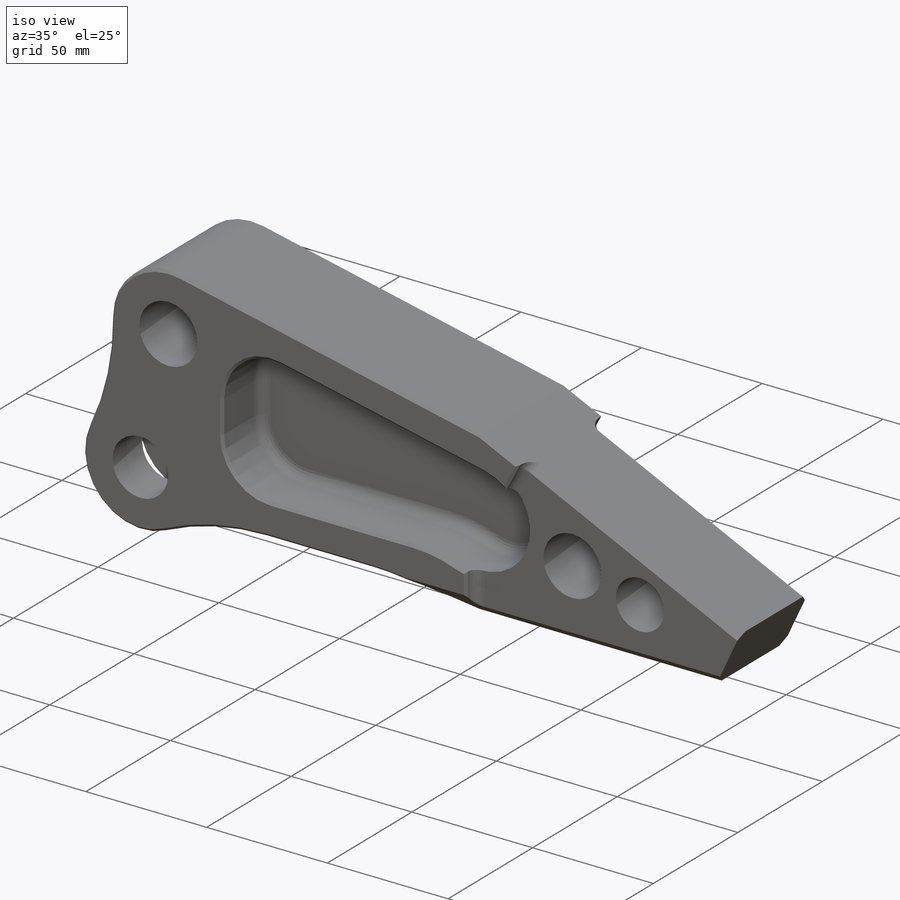
[diagram: iso view]
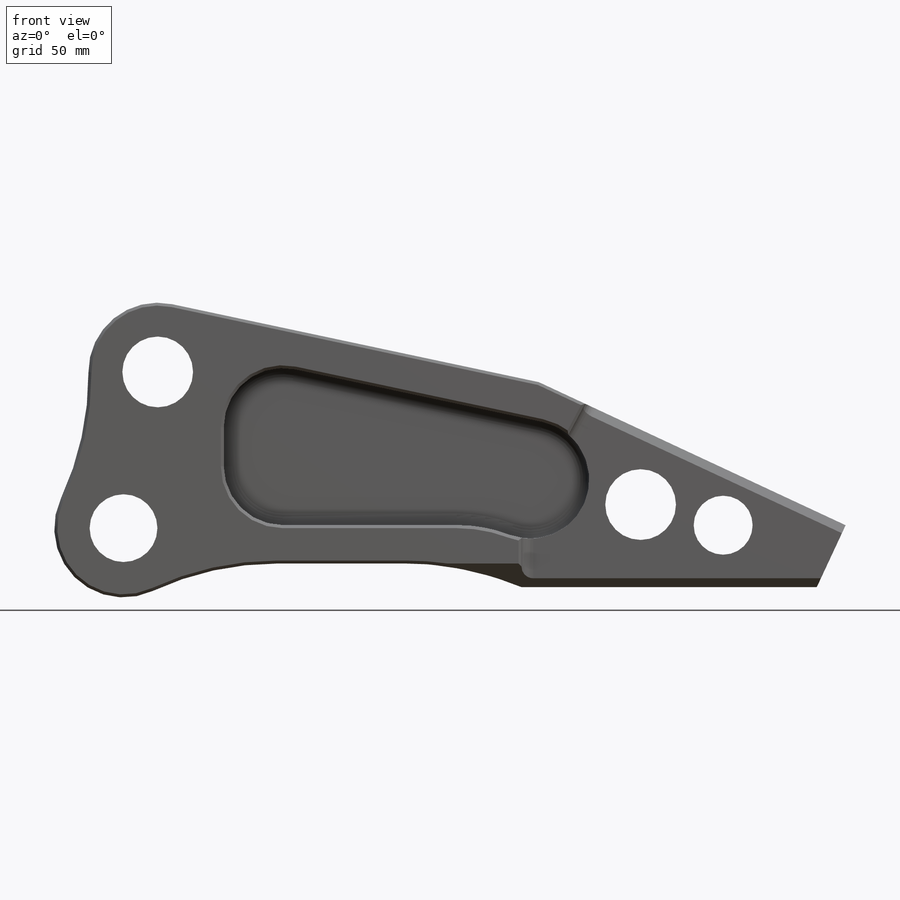
[diagram: front view]
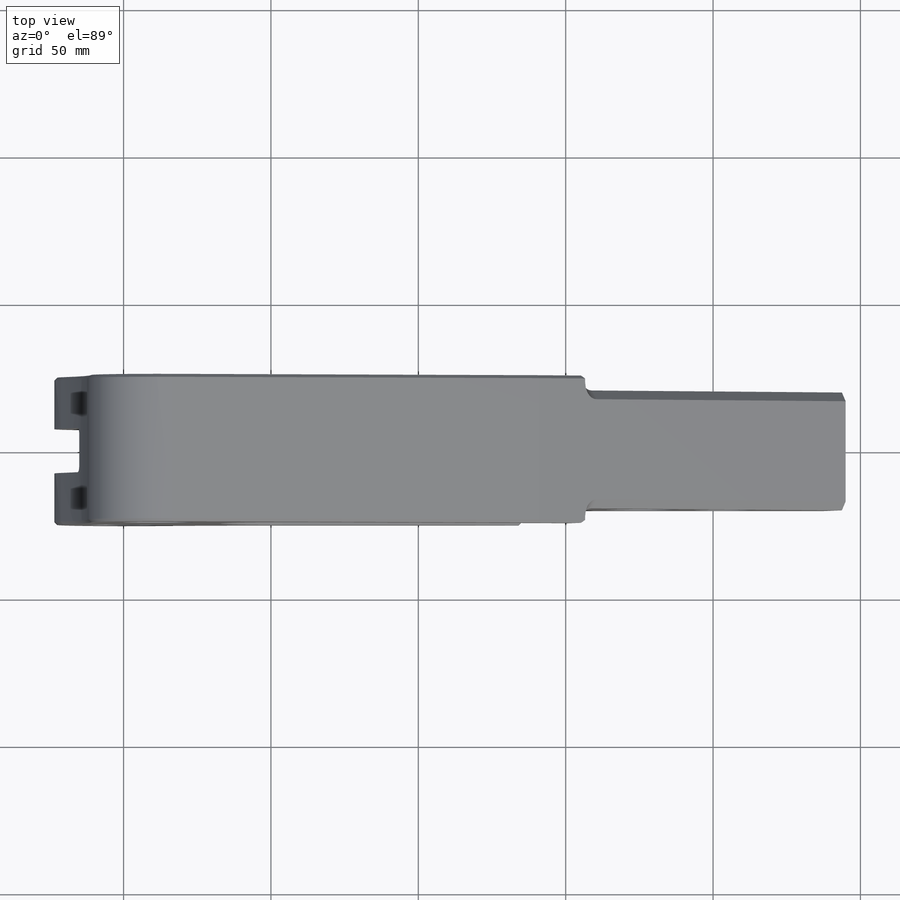
[diagram: top view]
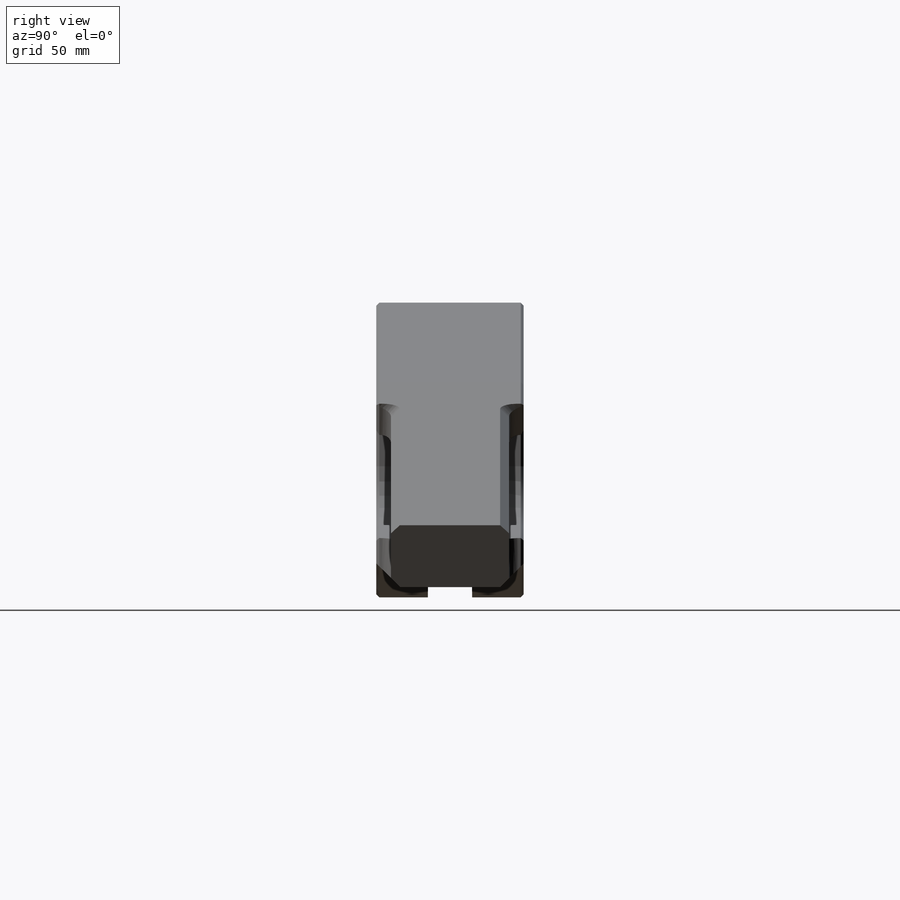
[diagram: right view]
SOLIDWORKS PART (.sldprt)
format: sldprt  version: not decoded by parser v0  size: 835,584 bytes
history: native  units: mm
features: sketch x6, extrude x3, fillet x3, cut_extrude x2, chamfer x2, material x1 (+12 scaffold rows collapsed)
feature tree (29):
  scaffold x12  (default folders/planes/origin — collapsed)
  material  "7075-T6 (SN)"
  sketch  "Sketch1"  dims[c1.D1=23.0mm c1.D2=24.0mm c1.D3=24.0mm c1.D13=100.0mm c1.D14=23.5mm c1.D15=100.0mm c1.D19=20.0mm c1.D22=18.0mm c1.D6=20.0mm c1.D7=19.0mm c1.D4=11.6mm c1.D5=53.0mm c2.D6=204.0mm c2.D7=176.0mm c2.D8=1.0mm c2.D9=8.0mm c2.D10=20.0mm c2.D11=8.0mm c2.D12=135.0mm c2.D15=245.0mm c2.D16=21.0mm c2.D17=~97.298294mm c3.D17=65.0deg c3.D18=~162.395199mm c4.D18=18.0deg c5.D18=~97.298294mm c6.D18=12.0deg c6.D20=~204.002451mm c6.D21=~151.959151mm c6.D22=21.0mm c7.D21=21.0mm c7.D22=21.0mm c8.D21=21.0mm c8.D22=21.0mm c9.D21=21.0mm c9.D22=21.0mm c10.D21=21.0mm c10.D22=21.0mm c11.D21=21.0mm c11.D22=21.0mm c12.D21=21.0mm c12.D22=21.0mm c13.D21=21.0mm c13.D22=21.0mm c14.D21=21.0mm c14.D22=~35.007042mm c15.D21=~35.007042mm c15.D22=~35.007042mm c16.D21=~35.007042mm c16.D22=~35.007042mm c17.D21=~35.007042mm c17.D22=~35.007042mm c18.D21=~35.007042mm c18.D22=~35.007042mm c19.D21=~35.007042mm c19.D22=~35.007042mm c20.D21=~35.007042mm c20.D22=~35.007042mm c21.D21=~35.007042mm c21.D22=~35.007042mm c22.D21=~35.007042mm c22.D22=~35.007042mm c23.D21=~35.007042mm c23.D22=~35.007042mm c24.D21=~35.007042mm c24.D22=~35.007042mm c25.D21=~35.007042mm c25.D22=~35.007042mm c26.D21=~35.007042mm c26.D6=41.0mm c26.D20=~176.181724mm c27.D21=176.0mm c27.D22=28.0mm c28.D21=28.0mm c28.D22=28.0mm c29.D21=~62.755753mm c29.D22=~62.755753mm c30.D21=~62.755753mm c30.D22=~62.755753mm c31.D21=~62.755753mm c31.D22=~62.755753mm c32.D21=~62.755753mm c32.D7=69.0mm c32.D20=~136.473441mm c33.D21=135.0mm c33.D22=69.0mm c34.D21=69.0mm c34.D22=~84.262794mm c35.D21=~74.052559mm c35.D12=110.0mm c35.D20=~55.510247mm c36.D21=28.0mm c36.D22=28.0mm c37.D21=28.0mm c37.D22=28.0mm c37.D9=28.0mm c37.D20=~204.002451mm c38.D21=1.0mm c38.D22=21.0mm c39.D21=21.0mm c39.D22=21.0mm c40.D21=21.0mm c40.D22=21.0mm c41.D21=21.0mm c41.D22=21.0mm c42.D21=21.0mm c42.D8=21.0mm c42.D20=~35.47725mm c43.D20=28.0deg c43.D21=88.4mm c43.D6=46.0mm c43.D7=74.0mm]
  extrude  "Boss-Extrude1"  Depth=50mm
  extrude  "Boss-Extrude2"  [1 undecoded]
  sketch  "Sketch1<3>"  dims[D1=40.0mm]
  sketch  "Sketch3"  dims[D1=20.0mm D3=50.0mm D2=54.0mm D4=84.0mm D5=13.0mm D6=13.0mm]
  cut_extrude  "Cut-Extrude1"  [1 undecoded]
  sketch  "Sketch6"  dims[c1.D1=26.0mm c1.D2=~17.536835mm c2.D2=95.0deg c3.D2=~15.450147mm c4.D2=95.0deg c5.D2=~17.365621mm c6.D2=95.0deg]
  cut_extrude  "Cut-Extrude5"  Depth=15mm
  chamfer  "Chamfer1"  Distance=3mm Angle=45deg
  fillet  "Fillet2"  Radius=2mm
  chamfer  "Chamfer2"  Distance=1mm Angle=45deg
  fillet  "Fillet1"  Radius=4mm
  extrude  "Boss-Extrude3"  [1 undecoded]
  sketch  "Sketch3<3>"  dims[D1=5.0mm]
  fillet  "Fillet5"  Radius=4mm
  sketch  "Sketch7"
decode coverage: 12 of 16 modeling features carry decoded parameters
note: ~ marks probable driven/reference dimensions
note: 3 parameter values undecoded
summary: no parameter record found for 3 features
note: suppression state not decoded; provenance and decode notes live in map.json
